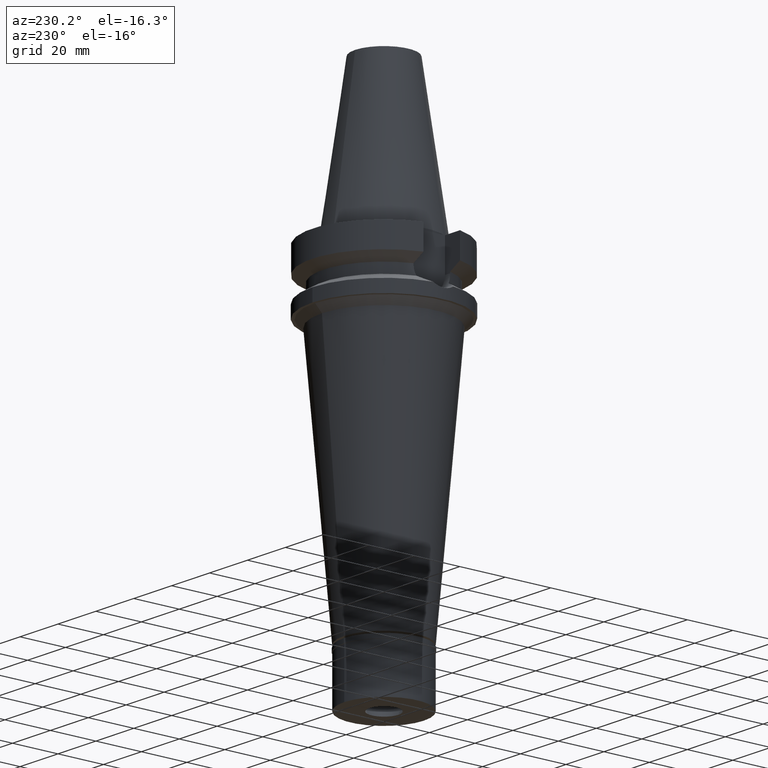
[diagram: clean part render]
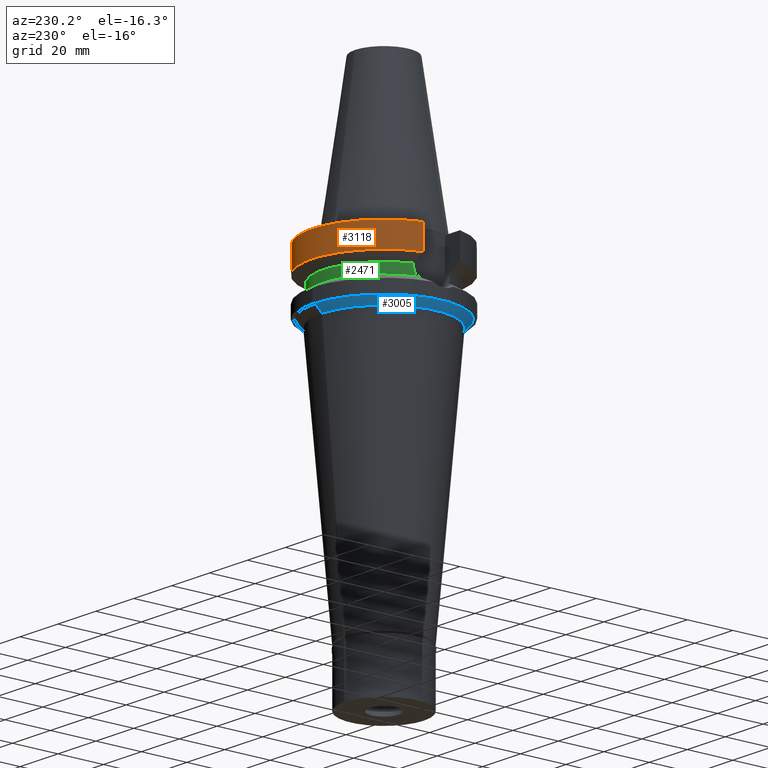
[diagram: same view with three faces highlighted in distinct colors, each labeled with its STEP entity id]
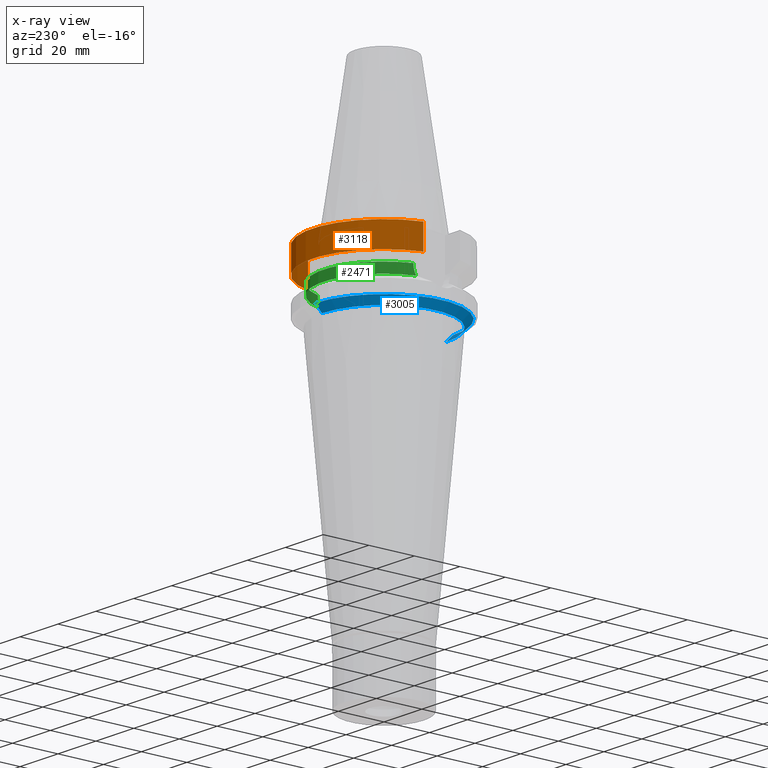
[diagram: x-ray of the same camera — body ghosted, the three highlighted faces saturated]
A machine part, auxiliary view with three faces highlighted in distinct colors.
The next image is the same camera in x-ray (body ghosted, the three faces saturated) — at least one of them is partly hidden behind the body in this view.
Their STEP definitions:

[orange] entity #3118 — the highlighted cylindrical surface (partial cylindrical patch) has radius 31.5 mm, axis along (0, 0, -1).
#212 = VERTEX_POINT ( 'NONE', #2874 ) ;
#266 = DIRECTION ( 'NONE',  ( 0.0000000000000000000, 0.0000000000000000000, -1.000000000000000000 ) ) ;
#316 = EDGE_CURVE ( 'NONE', #212, #862, #2021, .T. ) ;
#351 = CARTESIAN_POINT ( 'NONE',  ( -30.45402272279000044, 8.050000000000000711, -1.000000000000000000 ) ) ;
#428 = FACE_OUTER_BOUND ( 'NONE', #2285, .T. ) ;
#500 = CARTESIAN_POINT ( 'NONE',  ( 30.45402272279000044, 8.050000000000000711, -1.000000000000000000 ) ) ;
#634 = DIRECTION ( 'NONE',  ( 1.036636847253019641E-07, 3.921704262777068529E-07, -0.9999999999999177325 ) ) ;
#637 = DIRECTION ( 'NONE',  ( 0.0000000000000000000, -1.000000000000000000, 0.0000000000000000000 ) ) ;
#659 = CARTESIAN_POINT ( 'NONE',  ( -30.45402272279000044, 8.050000000000000711, -1.000000000000000000 ) ) ;
#703 = DIRECTION ( 'NONE',  ( 0.0000000000000000000, 1.000000000000000000, 0.0000000000000000000 ) ) ;
#862 = VERTEX_POINT ( 'NONE', #500 ) ;
#923 = CARTESIAN_POINT ( 'NONE',  ( -30.45402162752999686, 8.050004143464001061, -11.56546833011000075 ) ) ;
#998 = CIRCLE ( 'NONE', #1809, 31.50000000000000000 ) ;
#1014 = ORIENTED_EDGE ( 'NONE', *, *, #1988, .T. ) ;
#1058 = EDGE_CURVE ( 'NONE', #1358, #1313, #2807, .T. ) ;
#1115 = DIRECTION ( 'NONE',  ( 0.0000000000000000000, 0.0000000000000000000, 1.000000000000000000 ) ) ;
#1132 = EDGE_CURVE ( 'NONE', #212, #1313, #998, .T. ) ;
#1178 = CARTESIAN_POINT ( 'NONE',  ( 0.0000000000000000000, 2.162542550273999956E-14, 76.58499999999999375 ) ) ;
#1313 = VERTEX_POINT ( 'NONE', #923 ) ;
#1358 = VERTEX_POINT ( 'NONE', #659 ) ;
#1367 = ORIENTED_EDGE ( 'NONE', *, *, #1132, .T. ) ;
#1489 = CIRCLE ( 'NONE', #1956, 31.50000000000000000 ) ;
#1809 = AXIS2_PLACEMENT_3D ( 'NONE', #2330, #1115, #2998 ) ;
#1956 = AXIS2_PLACEMENT_3D ( 'NONE', #2183, #266, #703 ) ;
#1966 = DIRECTION ( 'NONE',  ( -1.806576684424990731E-08, 6.834499276693960781E-08, 0.9999999999999974465 ) ) ;
#1988 = EDGE_CURVE ( 'NONE', #1358, #862, #1489, .T. ) ;
#2021 = LINE ( 'NONE', #3000, #3091 ) ;
#2055 = AXIS2_PLACEMENT_3D ( 'NONE', #1178, #2123, #637 ) ;
#2077 = VECTOR ( 'NONE', #634, 1000.000000000000114 ) ;
#2123 = DIRECTION ( 'NONE',  ( 0.0000000000000000000, 0.0000000000000000000, -1.000000000000000000 ) ) ;
#2183 = CARTESIAN_POINT ( 'NONE',  ( 0.0000000000000000000, 2.162542550273999956E-14, -1.000000000000000000 ) ) ;
#2285 = EDGE_LOOP ( 'NONE', ( #2649, #1014, #2689, #1367 ) ) ;
#2330 = CARTESIAN_POINT ( 'NONE',  ( 0.0000000000000000000, 1.065333950388000029E-14, -11.56550565266999975 ) ) ;
#2380 = CYLINDRICAL_SURFACE ( 'NONE', #2055, 31.50000000000000000 ) ;
#2649 = ORIENTED_EDGE ( 'NONE', *, *, #1058, .F. ) ;
#2689 = ORIENTED_EDGE ( 'NONE', *, *, #316, .F. ) ;
#2807 = LINE ( 'NONE', #351, #2077 ) ;
#2874 = CARTESIAN_POINT ( 'NONE',  ( 30.45402291365999758, 8.049999277899999583, -11.56551215646999964 ) ) ;
#2998 = DIRECTION ( 'NONE',  ( 0.0000000000000000000, 1.000000000000000000, 0.0000000000000000000 ) ) ;
#3000 = CARTESIAN_POINT ( 'NONE',  ( 30.45402291365999758, 8.049999277899999583, -11.56551215646999964 ) ) ;
#3091 = VECTOR ( 'NONE', #1966, 1000.000000000000114 ) ;
#3118 = ADVANCED_FACE ( 'NONE', ( #428 ), #2380, .T. ) ;

[blue] entity #3005 — the highlighted conical surface has half-angle 45 deg.
#124 = CONICAL_SURFACE ( 'NONE', #1292, 28.77248371584999731, 0.7853981633972997312 ) ;
#141 = CARTESIAN_POINT ( 'NONE',  ( 0.0000000000000000000, 0.0000000000000000000, -27.00000000000000000 ) ) ;
#160 = FACE_OUTER_BOUND ( 'NONE', #767, .T. ) ;
#249 = VECTOR ( 'NONE', #871, 1000.000000000000000 ) ;
#371 = EDGE_CURVE ( 'NONE', #2153, #2914, #2833, .T. ) ;
#453 = CARTESIAN_POINT ( 'NONE',  ( 0.0000000000000000000, 30.27248371584999731, -27.00000000000000000 ) ) ;
#465 = ORIENTED_EDGE ( 'NONE', *, *, #1006, .F. ) ;
#589 = CARTESIAN_POINT ( 'NONE',  ( 0.0000000000000000000, -30.27248371584999731, -27.00000000000000000 ) ) ;
#639 = CARTESIAN_POINT ( 'NONE',  ( 0.0000000000000000000, 27.27248371584999731, -30.00000000000000000 ) ) ;
#720 = CARTESIAN_POINT ( 'NONE',  ( 0.0000000000000000000, -30.27248371584999731, -27.00000000000000000 ) ) ;
#767 = EDGE_LOOP ( 'NONE', ( #1791, #465, #2700, #2191 ) ) ;
#871 = DIRECTION ( 'NONE',  ( 0.0000000000000000000, 0.7071067811869975461, -0.7071067811860975993 ) ) ;
#927 = CARTESIAN_POINT ( 'NONE',  ( 0.0000000000000000000, 0.0000000000000000000, -28.50000000000000000 ) ) ;
#1006 = EDGE_CURVE ( 'NONE', #2520, #2153, #2052, .T. ) ;
#1106 = AXIS2_PLACEMENT_3D ( 'NONE', #1495, #1758, #2718 ) ;
#1264 = CARTESIAN_POINT ( 'NONE',  ( 0.0000000000000000000, -27.27248371584999731, -30.00000000000000000 ) ) ;
#1292 = AXIS2_PLACEMENT_3D ( 'NONE', #927, #1677, #2628 ) ;
#1370 = LINE ( 'NONE', #1432, #1857 ) ;
#1432 = CARTESIAN_POINT ( 'NONE',  ( 0.0000000000000000000, 30.27248371584999731, -27.00000000000000000 ) ) ;
#1495 = CARTESIAN_POINT ( 'NONE',  ( 0.0000000000000000000, 0.0000000000000000000, -30.00000000000000000 ) ) ;
#1677 = DIRECTION ( 'NONE',  ( 0.0000000000000000000, 0.0000000000000000000, 1.000000000000000000 ) ) ;
#1719 = AXIS2_PLACEMENT_3D ( 'NONE', #141, #2829, #2328 ) ;
#1758 = DIRECTION ( 'NONE',  ( 0.0000000000000000000, 0.0000000000000000000, -1.000000000000000000 ) ) ;
#1791 = ORIENTED_EDGE ( 'NONE', *, *, #371, .F. ) ;
#1857 = VECTOR ( 'NONE', #2332, 1000.000000000000000 ) ;
#2052 = LINE ( 'NONE', #589, #249 ) ;
#2153 = VERTEX_POINT ( 'NONE', #1264 ) ;
#2191 = ORIENTED_EDGE ( 'NONE', *, *, #2986, .T. ) ;
#2328 = DIRECTION ( 'NONE',  ( 0.0000000000000000000, -1.000000000000000000, 0.0000000000000000000 ) ) ;
#2332 = DIRECTION ( 'NONE',  ( 0.0000000000000000000, -0.7071067811869975461, -0.7071067811860975993 ) ) ;
#2520 = VERTEX_POINT ( 'NONE', #720 ) ;
#2628 = DIRECTION ( 'NONE',  ( 0.0000000000000000000, 1.000000000000000000, 0.0000000000000000000 ) ) ;
#2700 = ORIENTED_EDGE ( 'NONE', *, *, #2784, .T. ) ;
#2718 = DIRECTION ( 'NONE',  ( 0.0000000000000000000, -1.000000000000000000, 0.0000000000000000000 ) ) ;
#2784 = EDGE_CURVE ( 'NONE', #2520, #3003, #2881, .T. ) ;
#2829 = DIRECTION ( 'NONE',  ( 0.0000000000000000000, 0.0000000000000000000, -1.000000000000000000 ) ) ;
#2833 = CIRCLE ( 'NONE', #1106, 27.27248371584999731 ) ;
#2881 = CIRCLE ( 'NONE', #1719, 30.27248371584999731 ) ;
#2914 = VERTEX_POINT ( 'NONE', #639 ) ;
#2986 = EDGE_CURVE ( 'NONE', #3003, #2914, #1370, .T. ) ;
#3003 = VERTEX_POINT ( 'NONE', #453 ) ;
#3005 = ADVANCED_FACE ( 'NONE', ( #160 ), #124, .T. ) ;

[green] entity #2471 — the highlighted cylindrical surface (partial cylindrical patch) has radius 26.5 mm, axis along (0, 0, -1).
#10 = EDGE_LOOP ( 'NONE', ( #1679, #1444, #878, #532, #369, #2907 ) ) ;
#38 = FACE_OUTER_BOUND ( 'NONE', #10, .T. ) ;
#71 = VERTEX_POINT ( 'NONE', #2399 ) ;
#77 = CARTESIAN_POINT ( 'NONE',  ( -25.25396593744603635, 8.030896968456861629, -15.59377931114971183 ) ) ;
#235 = AXIS2_PLACEMENT_3D ( 'NONE', #411, #2845, #2119 ) ;
#246 = CARTESIAN_POINT ( 'NONE',  ( 25.53175183775000079, 7.097862220092999941, -18.74774300138999905 ) ) ;
#297 = CARTESIAN_POINT ( 'NONE',  ( -25.36818304348092923, 7.663708172131208585, -17.48836484279920711 ) ) ;
#369 = ORIENTED_EDGE ( 'NONE', *, *, #2112, .F. ) ;
#403 = CARTESIAN_POINT ( 'NONE',  ( 25.24772266958000344, 8.050000000000000711, -14.94999999999999929 ) ) ;
#411 = CARTESIAN_POINT ( 'NONE',  ( 0.0000000000000000000, 0.0000000000000000000, -18.74774300138999905 ) ) ;
#444 = EDGE_CURVE ( 'NONE', #635, #1138, #2397, .T. ) ;
#532 = ORIENTED_EDGE ( 'NONE', *, *, #2830, .T. ) ;
#571 = CARTESIAN_POINT ( 'NONE',  ( 25.32844325893252702, 7.792538688759799825, -16.96970524096439448 ) ) ;
#620 = CARTESIAN_POINT ( 'NONE',  ( 25.33292553851903151, 7.777985707518505265, -17.02558215514781992 ) ) ;
#635 = VERTEX_POINT ( 'NONE', #246 ) ;
#647 = B_SPLINE_CURVE_WITH_KNOTS ( 'NONE', 3,
 ( #768, #1984, #77, #3020, #829, #2772, #1277, #1555, #802, #2708, #1796, #297, #1815, #1748 ),
 .UNSPECIFIED., .F., .F.,
 ( 4, 2, 2, 1, 1, 2, 2, 4 ),
 ( 0.0000000000000000000, 0.2500000000000045519, 0.3750000000000056066, 0.4375000000000061062, 0.4687500000000052736, 0.4843750000000049960, 0.5000000000000046629, 1.000000000000000000 ),
 .UNSPECIFIED. ) ;
#667 = CARTESIAN_POINT ( 'NONE',  ( 0.0000000000000000000, 1.065333950388000029E-14, -14.45225699861000024 ) ) ;
#683 = AXIS2_PLACEMENT_3D ( 'NONE', #667, #1832, #1162 ) ;
#698 = CIRCLE ( 'NONE', #235, 26.49999999999998224 ) ;
#768 = CARTESIAN_POINT ( 'NONE',  ( -25.24772266958000344, 8.050000000000000711, -14.94999999999999929 ) ) ;
#778 = VECTOR ( 'NONE', #2577, 1000.000000000000114 ) ;
#802 = CARTESIAN_POINT ( 'NONE',  ( -25.31652055493196229, 7.831184758220201658, -16.81426458566338411 ) ) ;
#829 = CARTESIAN_POINT ( 'NONE',  ( -25.28049982587671707, 7.946985634402442322, -16.24435369772060156 ) ) ;
#878 = ORIENTED_EDGE ( 'NONE', *, *, #444, .F. ) ;
#986 = CARTESIAN_POINT ( 'NONE',  ( 0.0000000000000000000, 2.162542550273999956E-14, 76.58499999999999375 ) ) ;
#1105 = CARTESIAN_POINT ( 'NONE',  ( 25.39164478449283635, 7.584820969905358368, -17.65194245033610088 ) ) ;
#1122 = VERTEX_POINT ( 'NONE', #2575 ) ;
#1135 = CIRCLE ( 'NONE', #683, 26.50000000000000711 ) ;
#1138 = VERTEX_POINT ( 'NONE', #1833 ) ;
#1162 = DIRECTION ( 'NONE',  ( -0.9527442516822307583, 0.3037735849057093818, 0.0000000000000000000 ) ) ;
#1277 = CARTESIAN_POINT ( 'NONE',  ( -25.30215616128705136, 7.877576232114727794, -16.61085564858990082 ) ) ;
#1281 = LINE ( 'NONE', #1304, #2671 ) ;
#1304 = CARTESIAN_POINT ( 'NONE',  ( 25.24772266958000344, 8.050000000000000711, -14.94999999999999929 ) ) ;
#1308 = VERTEX_POINT ( 'NONE', #2139 ) ;
#1324 = CARTESIAN_POINT ( 'NONE',  ( 25.37572817765628841, 7.637723572231249314, -17.49814693643546448 ) ) ;
#1444 = ORIENTED_EDGE ( 'NONE', *, *, #2765, .F. ) ;
#1518 = VERTEX_POINT ( 'NONE', #1714 ) ;
#1555 = CARTESIAN_POINT ( 'NONE',  ( -25.31205759391835741, 7.845621557329842233, -16.75326793494526711 ) ) ;
#1577 = CARTESIAN_POINT ( 'NONE',  ( 25.27269246206562414, 7.973290322427805776, -16.24535685338602775 ) ) ;
#1615 = CARTESIAN_POINT ( 'NONE',  ( 25.44392473217112283, 7.408251102527441567, -18.11706870839242001 ) ) ;
#1679 = ORIENTED_EDGE ( 'NONE', *, *, #1856, .T. ) ;
#1711 = AXIS2_PLACEMENT_3D ( 'NONE', #986, #1933, #2902 ) ;
#1714 = CARTESIAN_POINT ( 'NONE',  ( -25.24772266958000344, 8.050000000000000711, -14.94999999999999929 ) ) ;
#1748 = CARTESIAN_POINT ( 'NONE',  ( -25.53175183775000079, 7.097862220092999941, -18.74774300138999905 ) ) ;
#1796 = CARTESIAN_POINT ( 'NONE',  ( -25.32121872273786067, 7.815971166074239029, -16.87703378351244154 ) ) ;
#1807 = CARTESIAN_POINT ( 'NONE',  ( 25.24772266957998923, 8.049999999999998934, -15.58999073683360237 ) ) ;
#1815 = CARTESIAN_POINT ( 'NONE',  ( -25.43788636140676118, 7.435506143573715754, -18.11669712823439582 ) ) ;
#1832 = DIRECTION ( 'NONE',  ( 0.0000000000000000000, 0.0000000000000000000, -1.000000000000000000 ) ) ;
#1833 = CARTESIAN_POINT ( 'NONE',  ( 25.24772266958000344, 8.050000000000000711, -14.94999999999999929 ) ) ;
#1835 = CARTESIAN_POINT ( 'NONE',  ( 25.53175183775000079, 7.097862220092999941, -18.74774300138999905 ) ) ;
#1856 = EDGE_CURVE ( 'NONE', #71, #1308, #1135, .T. ) ;
#1873 = CARTESIAN_POINT ( 'NONE',  ( 25.34387967354658855, 7.742345491376021016, -17.15662736174668979 ) ) ;
#1901 = CARTESIAN_POINT ( 'NONE',  ( -25.24772216375000156, 8.050001586471001502, -14.45224487658000001 ) ) ;
#1933 = DIRECTION ( 'NONE',  ( 0.0000000000000000000, 0.0000000000000000000, -1.000000000000000000 ) ) ;
#1984 = CARTESIAN_POINT ( 'NONE',  ( -25.24772266958000344, 8.050000000000018474, -15.27000127552689257 ) ) ;
#2078 = CARTESIAN_POINT ( 'NONE',  ( 25.35411833098577716, 7.708843546321432427, -17.27003765534289670 ) ) ;
#2112 = EDGE_CURVE ( 'NONE', #1518, #1122, #647, .T. ) ;
#2119 = DIRECTION ( 'NONE',  ( 0.9634623335000935818, 0.2678438573619981722, 0.0000000000000000000 ) ) ;
#2139 = CARTESIAN_POINT ( 'NONE',  ( 25.24772413102000002, 8.049995416383998403, -14.45229202342000008 ) ) ;
#2278 = CARTESIAN_POINT ( 'NONE',  ( 25.32419265906722927, 7.806329682138427373, -16.91574545218137615 ) ) ;
#2292 = CARTESIAN_POINT ( 'NONE',  ( 25.32550226136618932, 7.802082245155967932, -16.93251888162995655 ) ) ;
#2397 = B_SPLINE_CURVE_WITH_KNOTS ( 'NONE', 3,
 ( #1835, #2785, #1615, #1105, #1324, #2078, #1873, #620, #571, #2292, #2278, #1577, #1807, #403 ),
 .UNSPECIFIED., .F., .F.,
 ( 4, 2, 2, 1, 1, 2, 2, 4 ),
 ( 0.0000000000000000000, 0.2499999999999773515, 0.3749999999999648059, 0.4374999999999586997, 0.4687499999999569789, 0.4843749999999561462, 0.4999999999999552580, 1.000000000000000000 ),
 .UNSPECIFIED. ) ;
#2399 = CARTESIAN_POINT ( 'NONE',  ( -25.24772216375000156, 8.050001586471001502, -14.45224487658000001 ) ) ;
#2457 = CYLINDRICAL_SURFACE ( 'NONE', #1711, 26.50000000000000000 ) ;
#2471 = ADVANCED_FACE ( 'NONE', ( #38 ), #2457, .T. ) ;
#2575 = CARTESIAN_POINT ( 'NONE',  ( -25.53175183775000079, 7.097862220092999941, -18.74774300138999905 ) ) ;
#2577 = DIRECTION ( 'NONE',  ( -1.016224662221004237E-06, -3.187251312399015996E-06, -0.9999999999944043649 ) ) ;
#2671 = VECTOR ( 'NONE', #3093, 1000.000000000000114 ) ;
#2708 = CARTESIAN_POINT ( 'NONE',  ( -25.31954463780457587, 7.821394976198481785, -16.85491936549455971 ) ) ;
#2765 = EDGE_CURVE ( 'NONE', #1138, #1308, #1281, .T. ) ;
#2772 = CARTESIAN_POINT ( 'NONE',  ( -25.29454717857531421, 7.902012029789251102, -16.48868902742450970 ) ) ;
#2785 = CARTESIAN_POINT ( 'NONE',  ( 25.48481820018147914, 7.266687417059683796, -18.43221401827393890 ) ) ;
#2830 = EDGE_CURVE ( 'NONE', #635, #1122, #698, .T. ) ;
#2845 = DIRECTION ( 'NONE',  ( 0.0000000000000000000, 0.0000000000000000000, 1.000000000000000000 ) ) ;
#2902 = DIRECTION ( 'NONE',  ( 0.0000000000000000000, -1.000000000000000000, 0.0000000000000000000 ) ) ;
#2907 = ORIENTED_EDGE ( 'NONE', *, *, #3065, .F. ) ;
#3020 = CARTESIAN_POINT ( 'NONE',  ( -25.27269574104415994, 7.971769475022786544, -16.08146184953518443 ) ) ;
#3059 = LINE ( 'NONE', #1901, #778 ) ;
#3065 = EDGE_CURVE ( 'NONE', #71, #1518, #3059, .T. ) ;
#3093 = DIRECTION ( 'NONE',  ( 2.936344683098950112E-06, -9.209448786821828654E-06, 0.9999999999532819261 ) ) ;